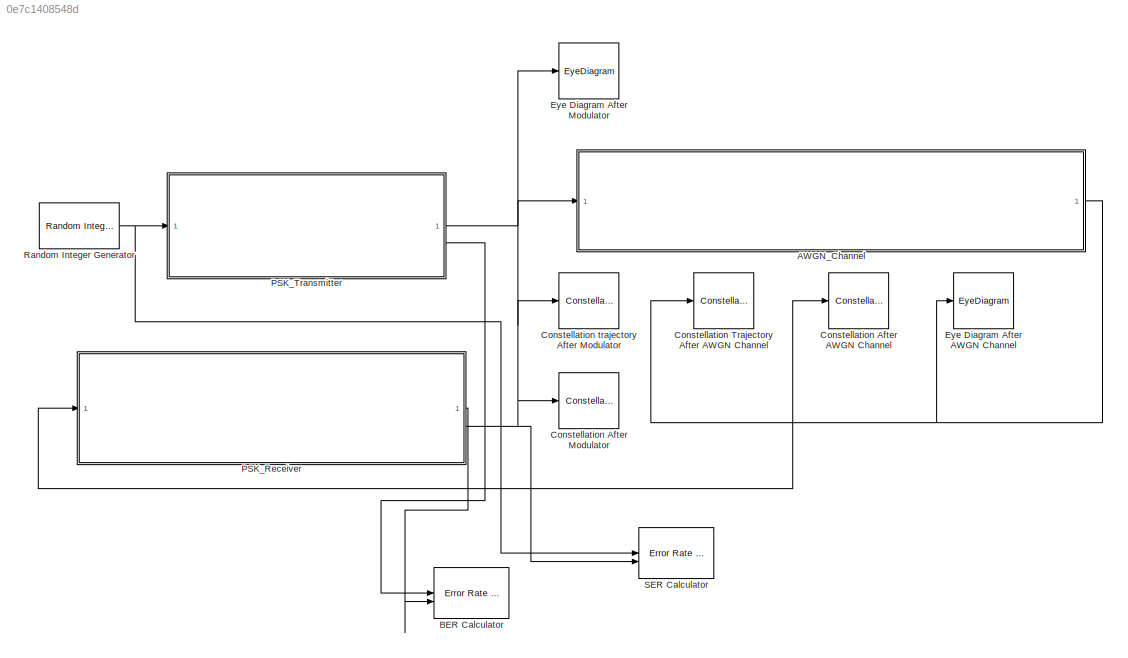
MODEL slx_0e7c1408548d
KIND model
CONFIG AbsTol = auto
CONFIG EnableMultiTasking = off
CONFIG FixedStep = 1
CONFIG MaxStep = auto
CONFIG MinStep = auto
CONFIG RelTol = 1e-3
CONFIG SampleTimeConstraint = Unconstrained
CONFIG SolverName = FixedStepDiscrete
CONFIG StartTime = 0.0
CONFIG StopTime = 1e5
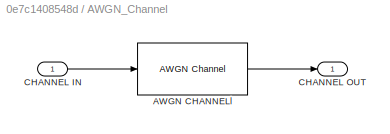
BLOCK [SubSystem] AWGN_Channel
BLOCK [Reference] AWGN_Channel/AWGN CHANNELl  REF=commchan3/AWGN
Channel
  SourceBlock = commchan3/AWGN\nChannel
  SourceType = AWGN Channel
BLOCK [Inport] AWGN_Channel/CHANNEL IN
BLOCK [Outport] AWGN_Channel/CHANNEL OUT
BLOCK [Reference] BER Calculator  REF=commsink2/Error Rate
Calculation
  SourceBlock = commsink2/Error Rate\nCalculation
  SourceType = Error Rate Calculation
BLOCK [ConstellationDiagram] Constellation After AWGN Channel
  GraphicalSettings = {"Style":{"BackgroundColor":[0.1568627450980392,0.1568627450980392,0.1568627450980392],"AxesColor":[0,0,0],"LabelsColor":[0.6862745098039216,0.6862745098039216,0.6862745098039216],"LineStyle":["NONE"],"LineColor":[[1,0,0]],"LineWidth":[1],"Marker":["none"],"IsRefLine":[true],"FontSize":"small"},"ReferenceConstellation":[{"RefConstellationValue":"[0.7071+0.7071i  -0.7071+0.7071i  -0.7071-0.7071i 0....<+107ch>
  ScopeFrameLocation = window
  ShowReferenceConstellation = off
  SymbolsToDisplay = 1000
  SymbolsToDisplaySource = Property
  WasSavedAsWebScope = on
  WindowPosition = [770.000000,50.000000,766.000000,881.000000,]
  XLimits = [-1.46,1.46]
  YLimits = [-1.38,1.38]
BLOCK [ConstellationDiagram] Constellation After Modulator
  GraphicalSettings = {"Style":{"BackgroundColor":[0.1568627450980392,0.1568627450980392,0.1568627450980392],"AxesColor":[0,0,0],"LabelsColor":[0.6862745098039216,0.6862745098039216,0.6862745098039216],"LineStyle":["NONE"],"LineColor":[[1,0,0]],"LineWidth":[1],"Marker":["none"],"IsRefLine":[true],"FontSize":"small"},"ReferenceConstellation":[{"RefConstellationValue":"[0.7071+0.7071i  -0.7071+0.7071i  -0.7071-0.7071i 0....<+107ch>
  ScopeFrameLocation = window
  ShowReferenceConstellation = off
  SymbolsToDisplay = 1000
  SymbolsToDisplaySource = Property
  WasSavedAsWebScope = on
  WindowPosition = [2.000000,50.000000,766.000000,881.000000,]
  XLimits = [-1.46,1.46]
  YLimits = [-1.38,1.38]
BLOCK [ConstellationDiagram] Constellation Trajectory After AWGN Channel
  GraphicalSettings = {"Style":{"BackgroundColor":[0.15686274509803921,0.15686274509803921,0.15686274509803921],"AxesColor":[0,0,0],"LabelsColor":[0.68627450980392157,0.68627450980392157,0.68627450980392157],"LineStyle":["NONE"],"LineColor":[1,0,0],"LineWidth":1,"Marker":["none"],"IsRefLine":true,"FontSize":"small"},"ReferenceConstellation":{"AverageReferencePower":1,"RefConstellationValue":"[0.7071+0.7071i  -0.7071+0....<+103ch>
  ReferenceConstellation = QPSK
  ScopeFrameLocation = window
  ShowReferenceConstellation = off
  ShowTrajectory = on
  SymbolsToDisplay = 1000
  SymbolsToDisplaySource = Property
  WasSavedAsWebScope = on
  WindowPosition = [770.000000,50.000000,766.000000,881.000000,]
  XLimits = [-1.46,1.46]
  YLimits = [-1.38,1.38]
BLOCK [ConstellationDiagram] Constellation trajectory After Modulator
  GraphicalSettings = {"Style":{"BackgroundColor":[0.15686274509803921,0.15686274509803921,0.15686274509803921],"AxesColor":[0,0,0],"LabelsColor":[0.68627450980392157,0.68627450980392157,0.68627450980392157],"LineStyle":["-","NONE"],"LineColor":[[1,1,0.066666666666666666],[1,0,0]],"LineWidth":[1,1],"Marker":[".","none"],"IsRefLine":[false,true],"FontSize":"small"},"ReferenceConstellation":{"AverageReferencePower":1,"Re...<+152ch>
  ReferenceConstellation = QPSK
  ScopeFrameLocation = window
  ShowReferenceConstellation = off
  ShowTrajectory = on
  SymbolsToDisplay = 1000
  SymbolsToDisplaySource = Property
  WasSavedAsWebScope = on
  WindowPosition = [2.000000,50.000000,766.000000,881.000000,]
  XLimits = [-1.46,1.46]
  YLimits = [-1.38,1.38]
BLOCK [EyeDiagram] Eye Diagram After AWGN Channel
  ScopeSpecificationString = comm.scopes.EyeDiagramBlockCfg('CurrentConfiguration', extmgr.ConfigurationSet(extmgr.Configuration('Core','General UI',true),extmgr.Configuration('Core','Source UI',true),extmgr.Configuration('Sources','WiredSimulink',true),extmgr.Configuration('Sources','Simulink',false),extmgr.Configuration('Sources','File',false),extmgr.Configuration('Sources','Workspace',false),extmgr.Configuration('Sources',...<+1026ch>
BLOCK [EyeDiagram] Eye Diagram After Modulator
  ScopeSpecificationString = comm.scopes.EyeDiagramBlockCfg('CurrentConfiguration', extmgr.ConfigurationSet(extmgr.Configuration('Core','General UI',true),extmgr.Configuration('Core','Source UI',true),extmgr.Configuration('Sources','WiredSimulink',true),extmgr.Configuration('Sources','Simulink',false),extmgr.Configuration('Sources','File',false),extmgr.Configuration('Sources','Workspace',false),extmgr.Configuration('Sources',...<+1020ch>
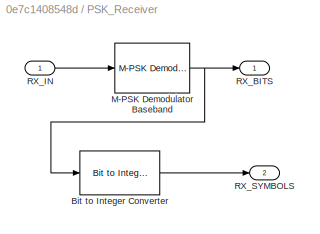
BLOCK [SubSystem] PSK_Receiver
BLOCK [Reference] PSK_Receiver/Bit to Integer Converter  REF=simulink/Logic and Bit
Operations/Bit to Integer
Converter
  SourceBlock = simulink/Logic and Bit\nOperations/Bit to Integer\nConverter
  SourceType = Bit to Integer Converter
BLOCK [Reference] PSK_Receiver/M-PSK Demodulator Baseband  REF=commdigbbndpm3/M-PSK
Demodulator
Baseband
  SourceBlock = commdigbbndpm3/M-PSK\nDemodulator\nBaseband
  SourceType = M-PSK Demodulator Baseband
BLOCK [Outport] PSK_Receiver/RX_BITS
BLOCK [Inport] PSK_Receiver/RX_IN
BLOCK [Outport] PSK_Receiver/RX_SYMBOLS
  Port = 2
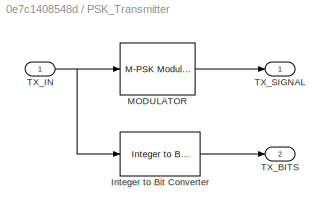
BLOCK [SubSystem] PSK_Transmitter
BLOCK [Reference] PSK_Transmitter/Integer to Bit Converter  REF=simulink/Logic and Bit
Operations/Integer to Bit
Converter
  SourceBlock = simulink/Logic and Bit\nOperations/Integer to Bit\nConverter
  SourceType = Integer to Bit Converter
BLOCK [Reference] PSK_Transmitter/MODULATOR  REF=commdigbbndpm3/M-PSK
Modulator
Baseband
  SourceBlock = commdigbbndpm3/M-PSK\nModulator\nBaseband
  SourceType = M-PSK Modulator Baseband
BLOCK [Outport] PSK_Transmitter/TX_BITS
  Port = 2
BLOCK [Inport] PSK_Transmitter/TX_IN
BLOCK [Outport] PSK_Transmitter/TX_SIGNAL
BLOCK [Reference] Random Integer Generator  REF=commrandsrc3/Random Integer
Generator
  SourceBlock = commrandsrc3/Random Integer\nGenerator
  SourceType = Random Integer Generator
BLOCK [Reference] SER Calculator  REF=commsink2/Error Rate
Calculation
  SourceBlock = commsink2/Error Rate\nCalculation
  SourceType = Error Rate Calculation
LINE AWGN_Channel/AWGN CHANNELl:1 -> AWGN_Channel/CHANNEL OUT:1
LINE AWGN_Channel/CHANNEL IN:1 -> AWGN_Channel/AWGN CHANNELl:1
NET AWGN_Channel:1 -> Constellation After AWGN Channel:1, Constellation Trajectory After AWGN Channel:1, Eye Diagram After AWGN Channel:1, PSK_Receiver:1
LINE PSK_Receiver/Bit to Integer Converter:1 -> PSK_Receiver/RX_SYMBOLS:1
NET PSK_Receiver/M-PSK Demodulator Baseband:1 -> PSK_Receiver/Bit to Integer Converter:1, PSK_Receiver/RX_BITS:1
LINE PSK_Receiver/RX_IN:1 -> PSK_Receiver/M-PSK Demodulator Baseband:1
LINE PSK_Receiver:1 -> BER Calculator:2
LINE PSK_Receiver:2 -> SER Calculator:2
LINE PSK_Transmitter/Integer to Bit Converter:1 -> PSK_Transmitter/TX_BITS:1
LINE PSK_Transmitter/MODULATOR:1 -> PSK_Transmitter/TX_SIGNAL:1
NET PSK_Transmitter/TX_IN:1 -> PSK_Transmitter/Integer to Bit Converter:1, PSK_Transmitter/MODULATOR:1
NET PSK_Transmitter:1 -> AWGN_Channel:1, Constellation After Modulator:1, Constellation trajectory After Modulator:1, Eye Diagram After Modulator:1
LINE PSK_Transmitter:2 -> BER Calculator:1
NET Random Integer Generator:1 -> PSK_Transmitter:1, SER Calculator:1
note: NET lines group one-source signal fan-out (src -> all destinations, sorted); 1:1 wires keep LINE
